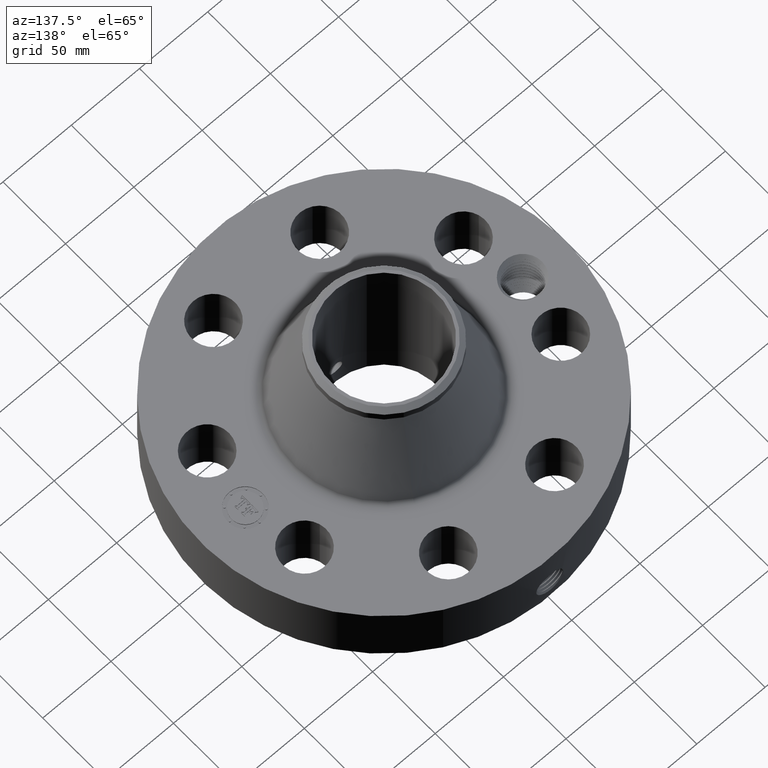
[diagram: clean part render]
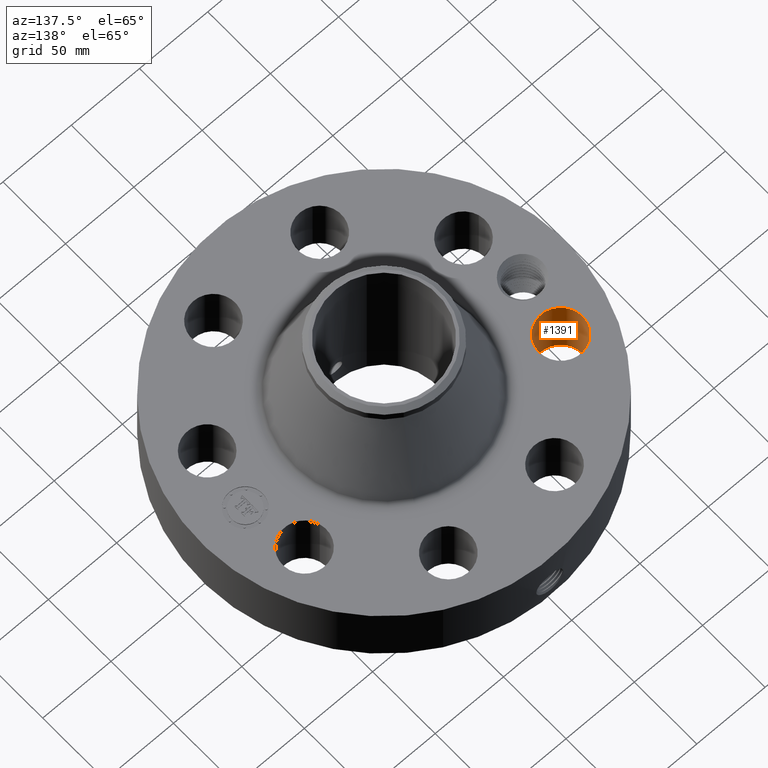
[diagram: same view with one face highlighted and labeled with its STEP entity id]
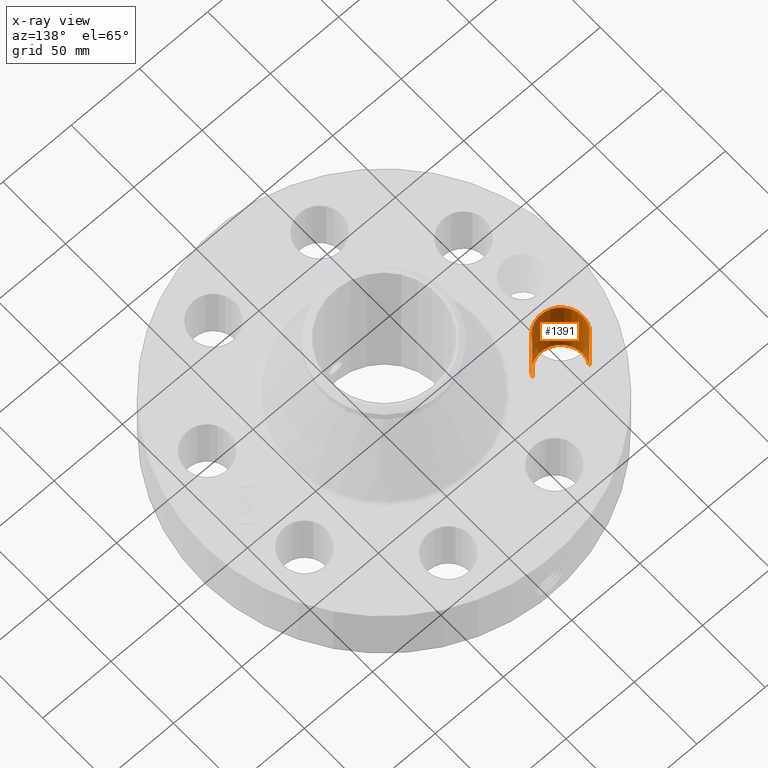
[diagram: x-ray of the same camera — body ghosted, the highlighted face saturated]
A machine part, auxiliary view. The second image highlights one B-rep face of the part: STEP entity #1391.
The next image is the same camera in x-ray: the body ghosted, the highlighted face saturated — about 5% of this face is hidden behind the body in this view.
In plain terms, the highlighted cylindrical surface (edge-blend (fillet) strip) has radius 15.875 mm, axis along (-0, 0, -1).
Its self-contained STEP definition (entity closure, byte-faithful):
#321=AXIS2_PLACEMENT_3D('Circle Axis2P3D',#319,#320,$) ;
#654=AXIS2_PLACEMENT_3D('Circle Axis2P3D',#652,#653,$) ;
#1373=AXIS2_PLACEMENT_3D('Cylinder Axis2P3D',#1370,#1371,#1372) ;
#319=CARTESIAN_POINT('Axis2P3D Location',(-3.69551813006,1.53073372947,0.250000000001)) ;
#323=CARTESIAN_POINT('Vertex',(-3.14702902888,1.23109276784,0.250000000001)) ;
#325=CARTESIAN_POINT('Vertex',(-4.24400723124,1.8303746911,0.250000000001)) ;
#647=CARTESIAN_POINT('Vertex',(-4.24400723124,1.8303746911,2.13000000001)) ;
#649=CARTESIAN_POINT('Vertex',(-3.14702902888,1.23109276784,2.13000000001)) ;
#652=CARTESIAN_POINT('Axis2P3D Location',(-3.69551813006,1.53073372947,2.13000000001)) ;
#1370=CARTESIAN_POINT('Axis2P3D Location',(-3.69551813006,1.53073372947,2.12606299213)) ;
#1375=CARTESIAN_POINT('Line Origine',(-3.14702902888,1.23109276784,1.19)) ;
#1380=CARTESIAN_POINT('Line Origine',(-4.24400723124,1.8303746911,1.19)) ;
#320=DIRECTION('Axis2P3D Direction',(0.,0.,-0.0393700787402)) ;
#653=DIRECTION('Axis2P3D Direction',(0.,0.,-0.0393700787402)) ;
#1371=DIRECTION('Axis2P3D Direction',(-0.,0.,-0.0393700787402)) ;
#1372=DIRECTION('Axis2P3D XDirection',(-0.0345504945626,0.0188750212049,0.)) ;
#1376=DIRECTION('Vector Direction',(0.,0.,-0.0393700787402)) ;
#1381=DIRECTION('Vector Direction',(0.,0.,-0.0393700787402)) ;
#1377=VECTOR('Line Direction',#1376,0.0393700787402) ;
#1382=VECTOR('Line Direction',#1381,0.0393700787402) ;
#1386=ORIENTED_EDGE('',*,*,#1379,.F.) ;
#1387=ORIENTED_EDGE('',*,*,#327,.T.) ;
#1388=ORIENTED_EDGE('',*,*,#1384,.T.) ;
#1389=ORIENTED_EDGE('',*,*,#656,.F.) ;
#1391=ADVANCED_FACE('PartBody',(#1390),#1374,.F.) ;
#322=CIRCLE('generated circle',#321,0.625000000002) ;
#655=CIRCLE('generated circle',#654,0.625000000002) ;
#1374=CYLINDRICAL_SURFACE('generated cylinder',#1373,0.625000000002) ;
#327=EDGE_CURVE('',#324,#326,#322,.T.) ;
#656=EDGE_CURVE('',#650,#648,#655,.T.) ;
#1379=EDGE_CURVE('',#324,#650,#1378,.F.) ;
#1384=EDGE_CURVE('',#326,#648,#1383,.F.) ;
#1385=EDGE_LOOP('',(#1386,#1387,#1388,#1389)) ;
#1390=FACE_OUTER_BOUND('',#1385,.T.) ;
#1378=LINE('Line',#1375,#1377) ;
#1383=LINE('Line',#1380,#1382) ;
#324=VERTEX_POINT('',#323) ;
#326=VERTEX_POINT('',#325) ;
#648=VERTEX_POINT('',#647) ;
#650=VERTEX_POINT('',#649) ;